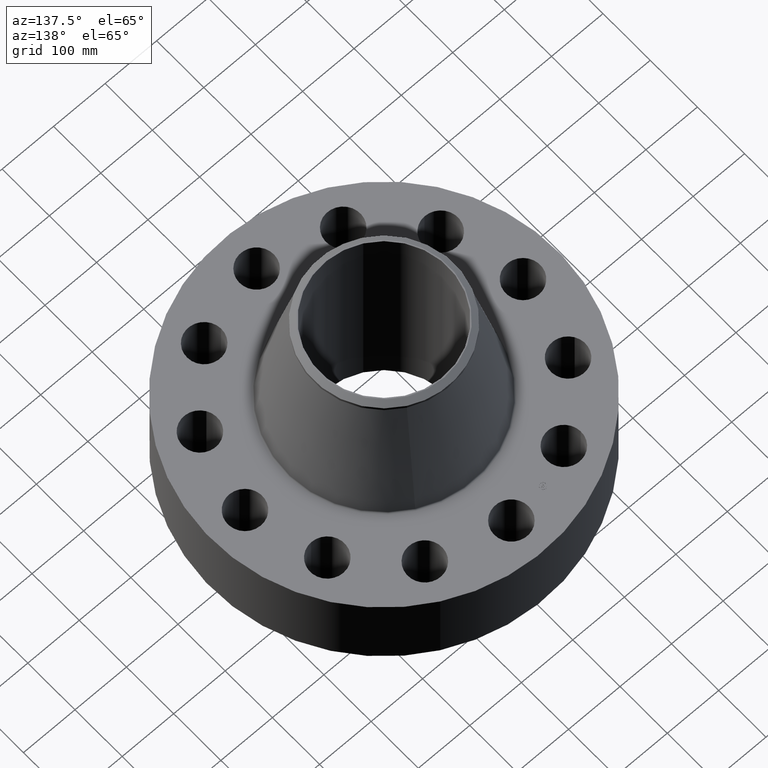
[diagram: clean part render]
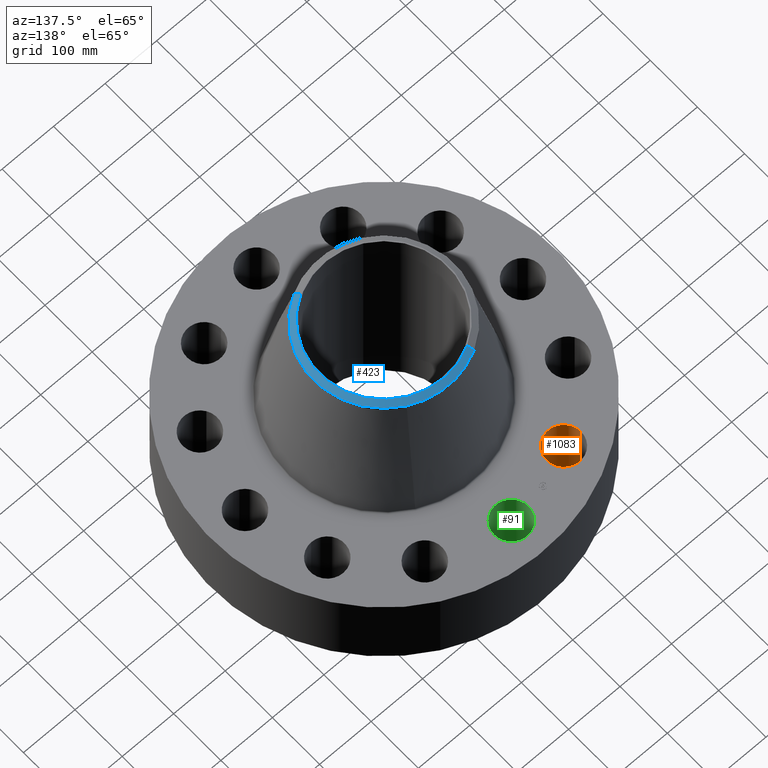
[diagram: same view with three faces highlighted in distinct colors, each labeled with its STEP entity id]
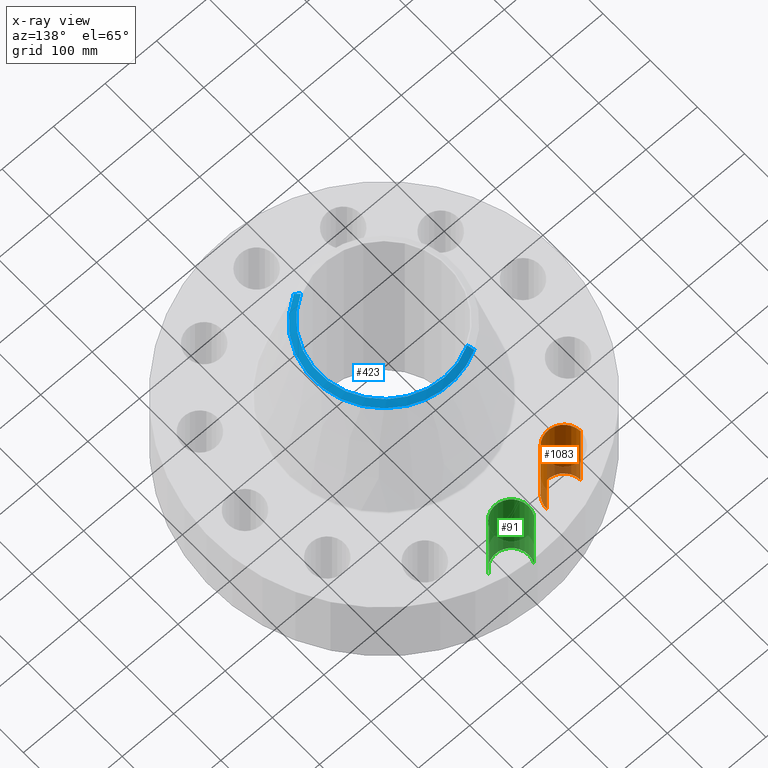
[diagram: x-ray of the same camera — body ghosted, the three highlighted faces saturated]
A machine part, auxiliary view with three faces highlighted in distinct colors.
The next image is the same camera in x-ray (body ghosted, the three faces saturated) — at least one of them is partly hidden behind the body in this view.
Their STEP definitions:

[orange] entity #1083 — the highlighted cylindrical surface (edge-blend (fillet) strip) has radius 33.401 mm, axis along (0, 0, -1).
#689=AXIS2_PLACEMENT_3D('Circle Axis2P3D',#687,#688,$) ;
#1044=AXIS2_PLACEMENT_3D('Cylinder Axis2P3D',#1041,#1042,#1043) ;
#1074=AXIS2_PLACEMENT_3D('Circle Axis2P3D',#1072,#1073,$) ;
#682=CARTESIAN_POINT('Vertex',(-6.62713385382,9.17049040559,0.)) ;
#684=CARTESIAN_POINT('Vertex',(-3.99786614623,9.2325494249,0.)) ;
#687=CARTESIAN_POINT('Axis2P3D Location',(-5.31250000002,9.20151991525,0.)) ;
#1041=CARTESIAN_POINT('Axis2P3D Location',(-5.31250000002,9.20151991525,6.49606299215)) ;
#1046=CARTESIAN_POINT('Line Origine',(-6.62713385382,9.17049040559,3.25000000001)) ;
#1050=CARTESIAN_POINT('Vertex',(-6.62713385382,9.17049040559,6.50000000003)) ;
#1053=CARTESIAN_POINT('Line Origine',(-3.99786614623,9.2325494249,3.25000000001)) ;
#1057=CARTESIAN_POINT('Vertex',(-3.99786614623,9.2325494249,6.50000000003)) ;
#1072=CARTESIAN_POINT('Axis2P3D Location',(-5.31250000002,9.20151991525,6.50000000003)) ;
#688=DIRECTION('Axis2P3D Direction',(0.,0.,-0.0393700787402)) ;
#1042=DIRECTION('Axis2P3D Direction',(0.,0.,-0.0393700787402)) ;
#1043=DIRECTION('Axis2P3D XDirection',(0.039359116607,0.000928999420902,0.)) ;
#1047=DIRECTION('Vector Direction',(0.,0.,-0.0393700787402)) ;
#1054=DIRECTION('Vector Direction',(0.,0.,-0.0393700787402)) ;
#1073=DIRECTION('Axis2P3D Direction',(0.,0.,-0.0393700787402)) ;
#1048=VECTOR('Line Direction',#1047,0.0393700787402) ;
#1055=VECTOR('Line Direction',#1054,0.0393700787402) ;
#1078=ORIENTED_EDGE('',*,*,#1059,.F.) ;
#1079=ORIENTED_EDGE('',*,*,#691,.T.) ;
#1080=ORIENTED_EDGE('',*,*,#1052,.T.) ;
#1081=ORIENTED_EDGE('',*,*,#1076,.F.) ;
#1083=ADVANCED_FACE('PartBody',(#1082),#1045,.F.) ;
#690=CIRCLE('generated circle',#689,1.31500000001) ;
#1075=CIRCLE('generated circle',#1074,1.31500000001) ;
#1045=CYLINDRICAL_SURFACE('generated cylinder',#1044,1.31500000001) ;
#691=EDGE_CURVE('',#685,#683,#690,.T.) ;
#1052=EDGE_CURVE('',#683,#1051,#1049,.F.) ;
#1059=EDGE_CURVE('',#685,#1058,#1056,.F.) ;
#1076=EDGE_CURVE('',#1058,#1051,#1075,.T.) ;
#1077=EDGE_LOOP('',(#1078,#1079,#1080,#1081)) ;
#1082=FACE_OUTER_BOUND('',#1077,.T.) ;
#1049=LINE('Line',#1046,#1048) ;
#1056=LINE('Line',#1053,#1055) ;
#683=VERTEX_POINT('',#682) ;
#685=VERTEX_POINT('',#684) ;
#1051=VERTEX_POINT('',#1050) ;
#1058=VERTEX_POINT('',#1057) ;

[blue] entity #423 — the highlighted conical surface has half-angle 52.5 deg.
#270=AXIS2_PLACEMENT_3D('Circle Axis2P3D',#268,#269,$) ;
#297=AXIS2_PLACEMENT_3D('Circle Axis2P3D',#295,#296,$) ;
#311=AXIS2_PLACEMENT_3D('Cone Axis2P3D',#308,#309,#310) ;
#404=AXIS2_PLACEMENT_3D('Circle Axis2P3D',#402,#403,$) ;
#265=CARTESIAN_POINT('Vertex',(2.57691227001,4.71700627018,16.1767559539)) ;
#268=CARTESIAN_POINT('Axis2P3D Location',(0.,0.,16.1767559539)) ;
#272=CARTESIAN_POINT('Vertex',(2.57691227001,-4.71700627018,16.1767559539)) ;
#292=CARTESIAN_POINT('Vertex',(-2.57691227001,4.71700627018,16.1767559539)) ;
#295=CARTESIAN_POINT('Axis2P3D Location',(0.,0.,16.1767559539)) ;
#308=CARTESIAN_POINT('Axis2P3D Location',(0.,0.,16.5000000001)) ;
#313=CARTESIAN_POINT('Line Origine',(2.47593090656,-4.53216112427,16.338377977)) ;
#317=CARTESIAN_POINT('Vertex',(2.37494954311,-4.34731597836,16.5000000001)) ;
#324=CARTESIAN_POINT('Vertex',(-2.37494954311,4.34731597836,16.5000000001)) ;
#327=CARTESIAN_POINT('Line Origine',(-2.47593090656,4.53216112427,16.338377977)) ;
#402=CARTESIAN_POINT('Axis2P3D Location',(0.,0.,16.5000000001)) ;
#269=DIRECTION('Axis2P3D Direction',(0.,0.,-0.0393700787402)) ;
#296=DIRECTION('Axis2P3D Direction',(0.,0.,-0.0393700787402)) ;
#309=DIRECTION('Axis2P3D Direction',(-0.,-0.,-0.0393700787402)) ;
#310=DIRECTION('Axis2P3D XDirection',(-0.0188750212049,0.0345504945626,0.)) ;
#314=DIRECTION('Vector Direction',(0.014974561121,-0.02741075027,-0.023966985394)) ;
#328=DIRECTION('Vector Direction',(-0.014974561121,0.02741075027,-0.023966985394)) ;
#403=DIRECTION('Axis2P3D Direction',(0.,0.,-0.0393700787402)) ;
#315=VECTOR('Line Direction',#314,0.0393700787402) ;
#329=VECTOR('Line Direction',#328,0.0393700787402) ;
#417=ORIENTED_EDGE('',*,*,#331,.F.) ;
#418=ORIENTED_EDGE('',*,*,#406,.F.) ;
#419=ORIENTED_EDGE('',*,*,#319,.T.) ;
#420=ORIENTED_EDGE('',*,*,#274,.T.) ;
#421=ORIENTED_EDGE('',*,*,#299,.F.) ;
#423=ADVANCED_FACE('PartBody',(#422),#312,.T.) ;
#271=CIRCLE('generated circle',#270,5.37500000002) ;
#298=CIRCLE('generated circle',#297,5.37500000002) ;
#405=CIRCLE('generated circle',#404,4.9537401575) ;
#312=CONICAL_SURFACE('Cone',#311,4.9537401575,0.916297857297) ;
#274=EDGE_CURVE('',#273,#266,#271,.F.) ;
#299=EDGE_CURVE('',#293,#266,#298,.T.) ;
#319=EDGE_CURVE('',#318,#273,#316,.T.) ;
#331=EDGE_CURVE('',#325,#293,#330,.T.) ;
#406=EDGE_CURVE('',#318,#325,#405,.F.) ;
#416=EDGE_LOOP('',(#417,#418,#419,#420,#421)) ;
#422=FACE_OUTER_BOUND('',#416,.T.) ;
#316=LINE('Line',#313,#315) ;
#330=LINE('Line',#327,#329) ;
#266=VERTEX_POINT('',#265) ;
#273=VERTEX_POINT('',#272) ;
#293=VERTEX_POINT('',#292) ;
#318=VERTEX_POINT('',#317) ;
#325=VERTEX_POINT('',#324) ;

[green] entity #91 — the highlighted cylindrical surface (edge-blend (fillet) strip) has radius 33.401 mm, axis along (0, -0, -1).
#38=AXIS2_PLACEMENT_3D('Cylinder Axis2P3D',#35,#36,#37) ;
#77=AXIS2_PLACEMENT_3D('Circle Axis2P3D',#75,#76,$) ;
#82=AXIS2_PLACEMENT_3D('Circle Axis2P3D',#80,#81,$) ;
#35=CARTESIAN_POINT('Axis2P3D Location',(0.,10.625,6.49606299215)) ;
#40=CARTESIAN_POINT('Line Origine',(-1.15402106889,11.2554445833,3.25000000001)) ;
#44=CARTESIAN_POINT('Vertex',(-1.15402106889,11.2554445833,0.)) ;
#46=CARTESIAN_POINT('Vertex',(-1.15402106889,11.2554445833,6.50000000003)) ;
#53=CARTESIAN_POINT('Vertex',(1.15402106889,9.99455541678,0.)) ;
#56=CARTESIAN_POINT('Line Origine',(1.15402106889,9.99455541678,3.25000000001)) ;
#60=CARTESIAN_POINT('Vertex',(1.15402106889,9.99455541678,6.50000000003)) ;
#75=CARTESIAN_POINT('Axis2P3D Location',(0.,10.625,0.)) ;
#80=CARTESIAN_POINT('Axis2P3D Location',(0.,10.625,6.50000000003)) ;
#36=DIRECTION('Axis2P3D Direction',(0.,-0.,-0.0393700787402)) ;
#37=DIRECTION('Axis2P3D XDirection',(0.0345504945626,-0.0188750212049,0.)) ;
#41=DIRECTION('Vector Direction',(0.,0.,-0.0393700787402)) ;
#57=DIRECTION('Vector Direction',(0.,0.,-0.0393700787402)) ;
#76=DIRECTION('Axis2P3D Direction',(0.,-0.,-0.0393700787402)) ;
#81=DIRECTION('Axis2P3D Direction',(0.,-0.,-0.0393700787402)) ;
#42=VECTOR('Line Direction',#41,0.0393700787402) ;
#58=VECTOR('Line Direction',#57,0.0393700787402) ;
#86=ORIENTED_EDGE('',*,*,#62,.F.) ;
#87=ORIENTED_EDGE('',*,*,#79,.T.) ;
#88=ORIENTED_EDGE('',*,*,#48,.T.) ;
#89=ORIENTED_EDGE('',*,*,#84,.F.) ;
#91=ADVANCED_FACE('PartBody',(#90),#39,.F.) ;
#78=CIRCLE('generated circle',#77,1.31500000001) ;
#83=CIRCLE('generated circle',#82,1.31500000001) ;
#39=CYLINDRICAL_SURFACE('generated cylinder',#38,1.31500000001) ;
#48=EDGE_CURVE('',#45,#47,#43,.F.) ;
#62=EDGE_CURVE('',#54,#61,#59,.F.) ;
#79=EDGE_CURVE('',#54,#45,#78,.T.) ;
#84=EDGE_CURVE('',#61,#47,#83,.T.) ;
#85=EDGE_LOOP('',(#86,#87,#88,#89)) ;
#90=FACE_OUTER_BOUND('',#85,.T.) ;
#43=LINE('Line',#40,#42) ;
#59=LINE('Line',#56,#58) ;
#45=VERTEX_POINT('',#44) ;
#47=VERTEX_POINT('',#46) ;
#54=VERTEX_POINT('',#53) ;
#61=VERTEX_POINT('',#60) ;